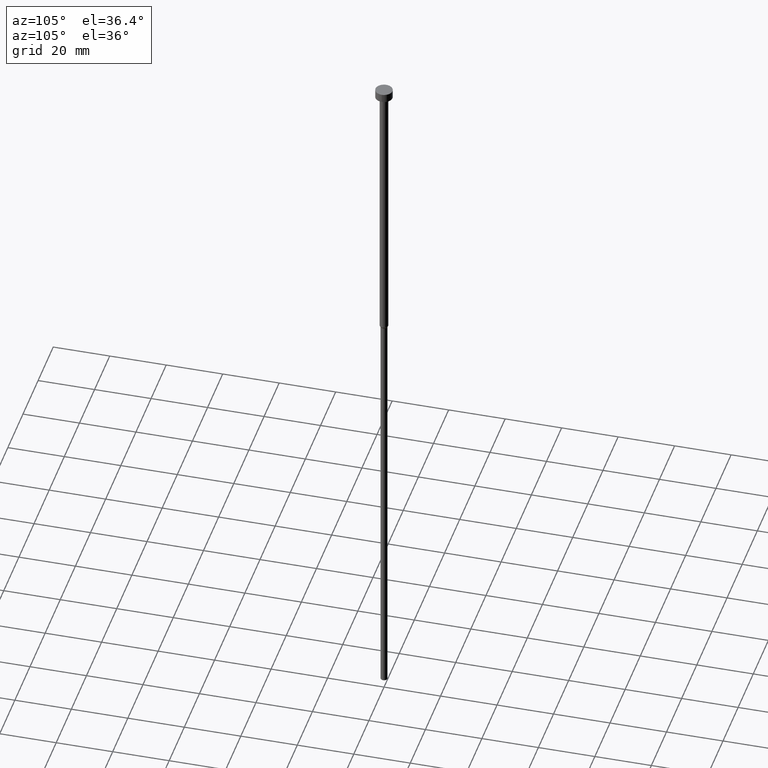
[diagram: clean part render]
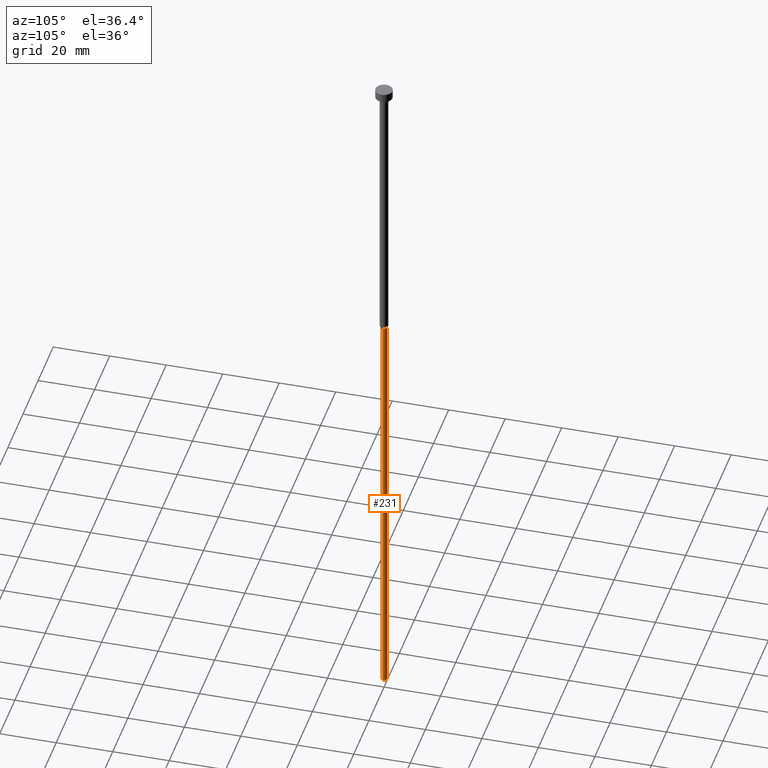
[diagram: same view with one face highlighted and labeled with its STEP entity id]
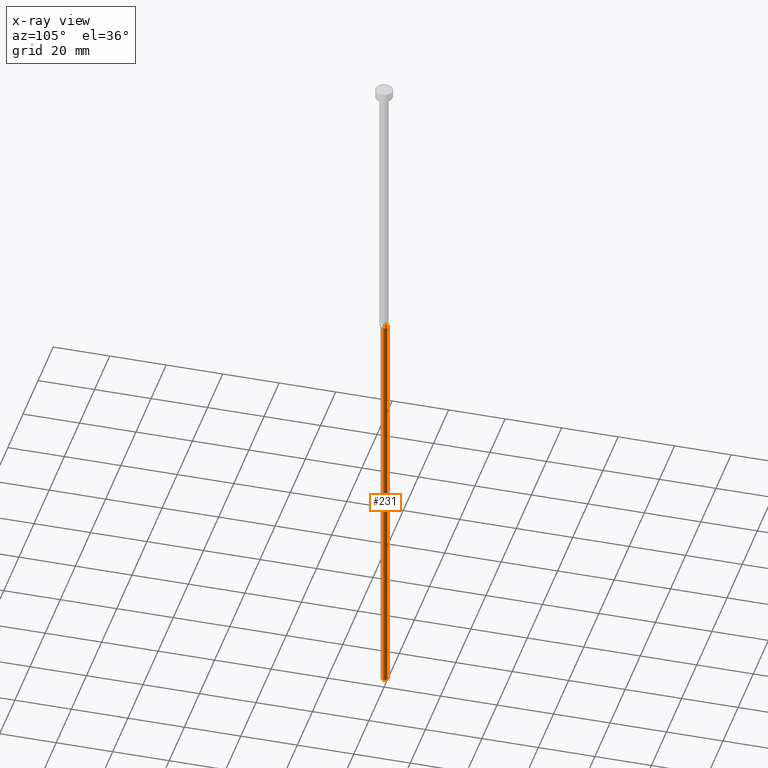
[diagram: x-ray of the same camera — body ghosted, the highlighted face saturated]
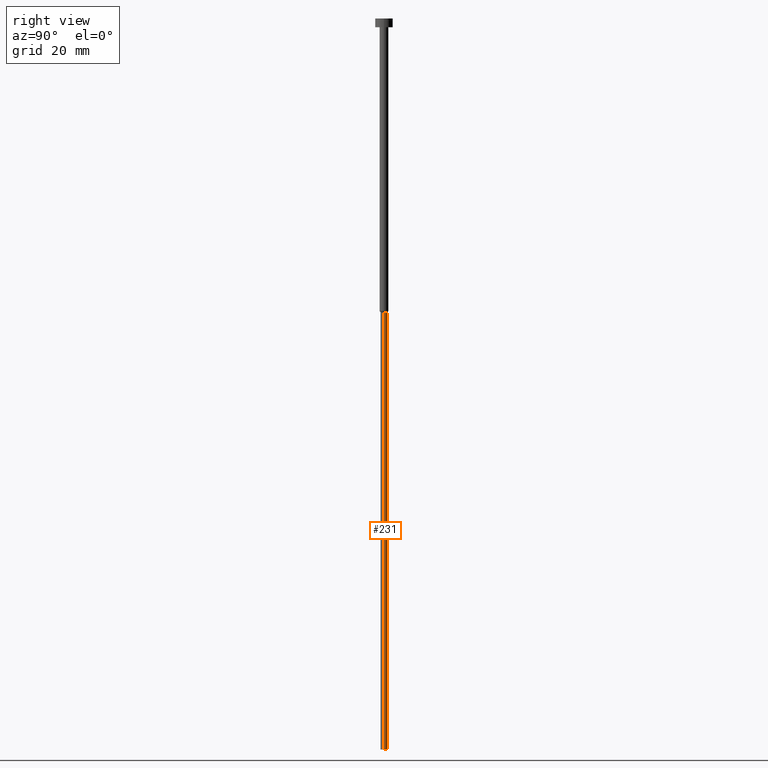
[diagram: same view with one face highlighted and labeled with its STEP entity id]
A machine part, auxiliary view. The second image highlights one B-rep face of the part: STEP entity #231.
The next image is the same camera in x-ray: the body ghosted, the highlighted face saturated — about 0% of this face is hidden behind the body in this view.
A second angle (right view) of the same face is appended — the face is thin or edge-on in the first view.
In plain terms, the highlighted cylindrical surface (edge-blend (fillet) strip) has radius 1.2 mm, axis along (-0, -0, 1).
Its self-contained STEP definition (entity closure, byte-faithful):
#14 = AXIS2_PLACEMENT_3D ( 'NONE', #249, #298, #174 ) ;
#22 = DIRECTION ( 'NONE',  ( -0.000000000000000000, -0.000000000000000000, 1.000000000000000000 ) ) ;
#36 = CARTESIAN_POINT ( 'NONE',  ( -1.199999999999999956, 1.469576158976823553E-16, -250.0000000000000000 ) ) ;
#62 = CARTESIAN_POINT ( 'NONE',  ( 1.199999999999999956, 0.000000000000000000, 0.000000000000000000 ) ) ;
#64 = EDGE_CURVE ( 'NONE', #308, #255, #114, .T. ) ;
#66 = ORIENTED_EDGE ( 'NONE', *, *, #98, .F. ) ;
#67 = AXIS2_PLACEMENT_3D ( 'NONE', #259, #22, #102 ) ;
#72 = CARTESIAN_POINT ( 'NONE',  ( 0.000000000000000000, 0.000000000000000000, -250.0000000000000000 ) ) ;
#86 = CYLINDRICAL_SURFACE ( 'NONE', #14, 1.199999999999999956 ) ;
#89 = CIRCLE ( 'NONE', #67, 1.199999999999999956 ) ;
#98 = EDGE_CURVE ( 'NONE', #291, #101, #89, .T. ) ;
#101 = VERTEX_POINT ( 'NONE', #286 ) ;
#102 = DIRECTION ( 'NONE',  ( 1.000000000000000000, 0.000000000000000000, 0.000000000000000000 ) ) ;
#114 = CIRCLE ( 'NONE', #342, 1.199999999999999956 ) ;
#119 = DIRECTION ( 'NONE',  ( -0.000000000000000000, -0.000000000000000000, 1.000000000000000000 ) ) ;
#130 = EDGE_CURVE ( 'NONE', #255, #101, #137, .T. ) ;
#137 = LINE ( 'NONE', #330, #303 ) ;
#150 = EDGE_CURVE ( 'NONE', #308, #291, #300, .T. ) ;
#169 = ORIENTED_EDGE ( 'NONE', *, *, #150, .F. ) ;
#174 = DIRECTION ( 'NONE',  ( 1.000000000000000000, 0.000000000000000000, 0.000000000000000000 ) ) ;
#189 = ORIENTED_EDGE ( 'NONE', *, *, #130, .T. ) ;
#191 = FACE_OUTER_BOUND ( 'NONE', #319, .T. ) ;
#199 = CARTESIAN_POINT ( 'NONE',  ( 1.199999999999999956, 0.000000000000000000, -250.0000000000000000 ) ) ;
#228 = VECTOR ( 'NONE', #119, 1000.000000000000000 ) ;
#231 = ADVANCED_FACE ( 'NONE', ( #191 ), #86, .T. ) ;
#246 = DIRECTION ( 'NONE',  ( -0.000000000000000000, -0.000000000000000000, 1.000000000000000000 ) ) ;
#249 = CARTESIAN_POINT ( 'NONE',  ( 0.000000000000000000, 0.000000000000000000, 0.000000000000000000 ) ) ;
#255 = VERTEX_POINT ( 'NONE', #36 ) ;
#259 = CARTESIAN_POINT ( 'NONE',  ( 0.000000000000000000, 0.000000000000000000, -100.5196152422706604 ) ) ;
#262 = DIRECTION ( 'NONE',  ( 1.000000000000000000, 0.000000000000000000, 0.000000000000000000 ) ) ;
#278 = ORIENTED_EDGE ( 'NONE', *, *, #64, .T. ) ;
#286 = CARTESIAN_POINT ( 'NONE',  ( -1.199999999999999956, 1.469576158976823553E-16, -100.5196152422706604 ) ) ;
#287 = DIRECTION ( 'NONE',  ( -0.000000000000000000, -0.000000000000000000, 1.000000000000000000 ) ) ;
#291 = VERTEX_POINT ( 'NONE', #304 ) ;
#298 = DIRECTION ( 'NONE',  ( -0.000000000000000000, -0.000000000000000000, 1.000000000000000000 ) ) ;
#300 = LINE ( 'NONE', #62, #228 ) ;
#303 = VECTOR ( 'NONE', #246, 1000.000000000000000 ) ;
#304 = CARTESIAN_POINT ( 'NONE',  ( 1.199999999999999956, 0.000000000000000000, -100.5196152422706604 ) ) ;
#308 = VERTEX_POINT ( 'NONE', #199 ) ;
#319 = EDGE_LOOP ( 'NONE', ( #278, #189, #66, #169 ) ) ;
#330 = CARTESIAN_POINT ( 'NONE',  ( -1.199999999999999956, 1.469576158976823553E-16, 0.000000000000000000 ) ) ;
#342 = AXIS2_PLACEMENT_3D ( 'NONE', #72, #287, #262 ) ;